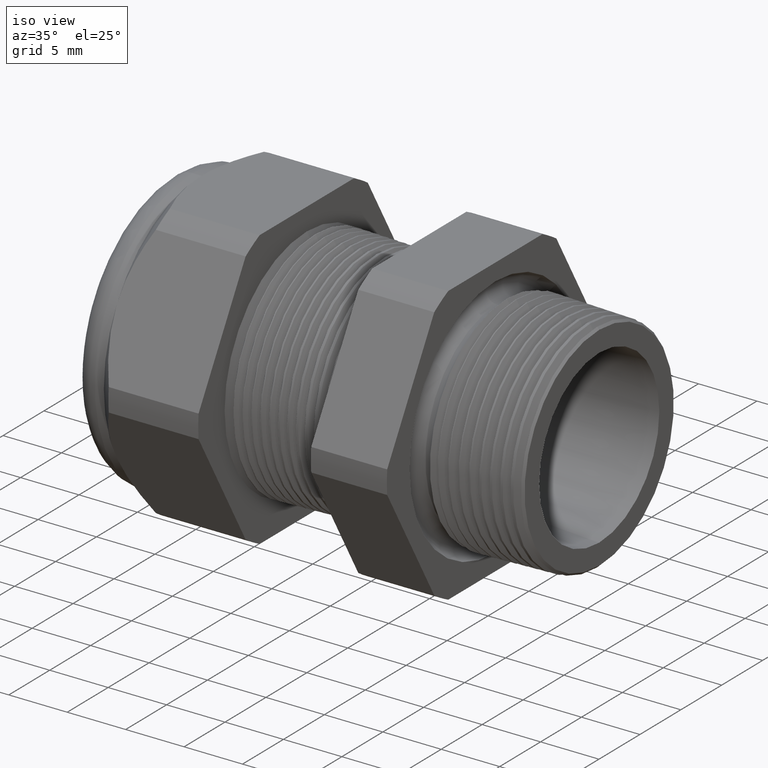
[diagram: clean part render]
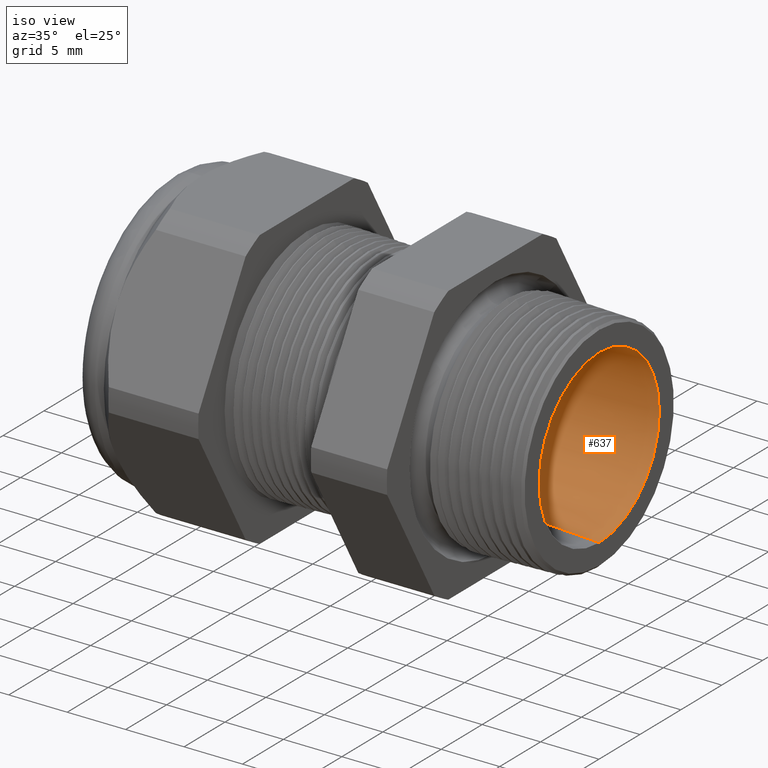
[diagram: same view with one face highlighted and labeled with its STEP entity id]
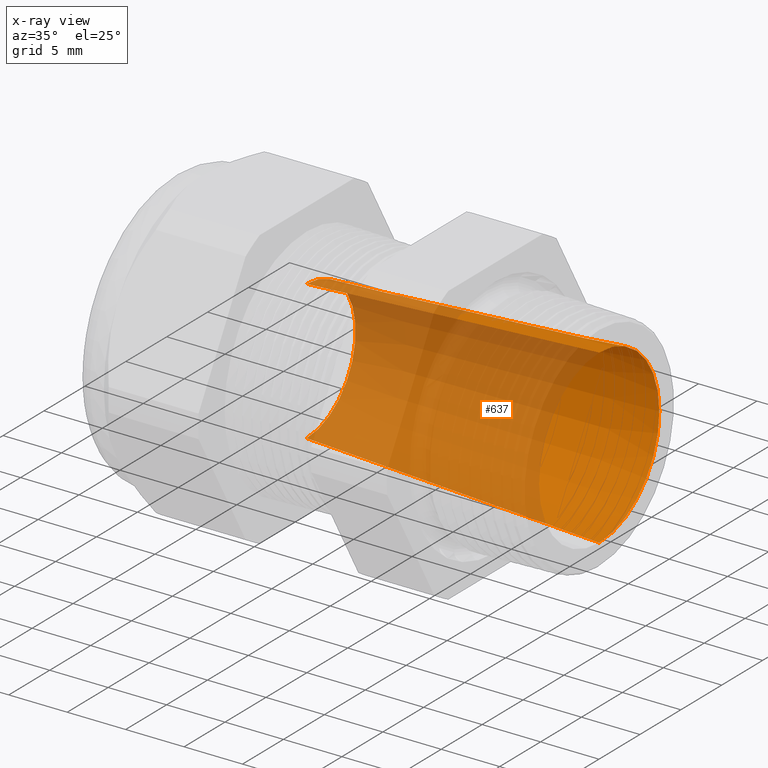
[diagram: x-ray of the same camera — body ghosted, the highlighted face saturated]
A machine part, iso view. The second image highlights one B-rep face of the part: STEP entity #637.
The next image is the same camera in x-ray: the body ghosted, the highlighted face saturated — about 67% of this face is hidden behind the body in this view.
In plain terms, the highlighted conical surface has half-angle 3.148 deg.
Its self-contained STEP definition (entity closure, byte-faithful):
#614 = ORIENTED_EDGE ( 'NONE', *, *, #4610, .F. ) ;
#615 = ORIENTED_EDGE ( 'NONE', *, *, #636, .F. ) ;
#616 = ORIENTED_EDGE ( 'NONE', *, *, #4959, .T. ) ;
#617 = ORIENTED_EDGE ( 'NONE', *, *, #618, .T. ) ;
#618 = EDGE_CURVE ( 'NONE', #4956, #4608, #2332, .T. ) ;
#636 = EDGE_CURVE ( 'NONE', #4617, #4628, #2369, .T. ) ;
#637 = ADVANCED_FACE ( 'NONE', ( #2365 ), #2364, .F. ) ;
#638 = EDGE_LOOP ( 'NONE', ( #614, #615, #616, #617 ) ) ;
#2328 = DIRECTION ( 'NONE',  ( 0.0000000000000000000, 0.0000000000000000000, -1.000000000000000000 ) ) ;
#2329 = DIRECTION ( 'NONE',  ( 1.000000000000000000, 0.0000000000000000000, 0.0000000000000000000 ) ) ;
#2330 = CARTESIAN_POINT ( 'NONE',  ( 0.03999999999999997300, 0.0000000000000000000, 0.0000000000000000000 ) ) ;
#2331 = AXIS2_PLACEMENT_3D ( 'NONE', #2330, #2329, #2328 ) ;
#2332 = CIRCLE ( 'NONE', #2331, 0.2891955268946231900 ) ;
#2359 = DIRECTION ( 'NONE',  ( 0.0000000000000000000, 0.0000000000000000000, -1.000000000000000000 ) ) ;
#2360 = DIRECTION ( 'NONE',  ( 1.000000000000000000, 0.0000000000000000000, 0.0000000000000000000 ) ) ;
#2361 = CARTESIAN_POINT ( 'NONE',  ( -0.9454330708661418100, 0.0000000000000000000, 0.0000000000000000000 ) ) ;
#2362 = AXIS2_PLACEMENT_3D ( 'NONE', #2361, #2360, #2359 ) ;
#2364 = CONICAL_SURFACE ( 'NONE', #2362, 0.2350000000000000100, 0.05494131151472639300 ) ;
#2365 = FACE_OUTER_BOUND ( 'NONE', #638, .T. ) ;
#2366 = DIRECTION ( 'NONE',  ( 0.0000000000000000000, 0.0000000000000000000, -1.000000000000000000 ) ) ;
#2367 = DIRECTION ( 'NONE',  ( 1.000000000000000000, 0.0000000000000000000, 0.0000000000000000000 ) ) ;
#2368 = AXIS2_PLACEMENT_3D ( 'NONE', #2375, #2367, #2366 ) ;
#2369 = CIRCLE ( 'NONE', #2368, 0.2350000000000000100 ) ;
#2375 = CARTESIAN_POINT ( 'NONE',  ( -0.9454330708661418100, 0.0000000000000000000, 0.0000000000000000000 ) ) ;
#3501 = CARTESIAN_POINT ( 'NONE',  ( -0.9454330708661418100, 0.0000000000000000000, -0.2350000000000000100 ) ) ;
#3518 = DIRECTION ( 'NONE',  ( 0.9984911057575849300, 6.724985655221754600E-018, 0.05491367519111593100 ) ) ;
#3519 = VECTOR ( 'NONE', #3518, 39.37007874015748100 ) ;
#3520 = CARTESIAN_POINT ( 'NONE',  ( -0.9454330708661418100, 2.877919977996280400E-017, 0.2350000000000000100 ) ) ;
#3521 = LINE ( 'NONE', #3520, #3519 ) ;
#3522 = CARTESIAN_POINT ( 'NONE',  ( 0.03999999999999997300, 3.541623763392326200E-017, 0.2891955268946231900 ) ) ;
#3556 = CARTESIAN_POINT ( 'NONE',  ( -0.9454330708661418100, 2.877919977996280400E-017, 0.2350000000000000100 ) ) ;
#4180 = DIRECTION ( 'NONE',  ( 0.9984911057575849300, 0.0000000000000000000, -0.05491367519111593100 ) ) ;
#4181 = VECTOR ( 'NONE', #4180, 39.37007874015748100 ) ;
#4182 = CARTESIAN_POINT ( 'NONE',  ( -0.9454330708661418100, 0.0000000000000000000, -0.2350000000000000100 ) ) ;
#4183 = LINE ( 'NONE', #4182, #4181 ) ;
#4184 = CARTESIAN_POINT ( 'NONE',  ( 0.03999999999999997300, 0.0000000000000000000, -0.2891955268946231900 ) ) ;
#4608 = VERTEX_POINT ( 'NONE', #3522 ) ;
#4610 = EDGE_CURVE ( 'NONE', #4628, #4608, #3521, .T. ) ;
#4617 = VERTEX_POINT ( 'NONE', #3501 ) ;
#4628 = VERTEX_POINT ( 'NONE', #3556 ) ;
#4956 = VERTEX_POINT ( 'NONE', #4184 ) ;
#4959 = EDGE_CURVE ( 'NONE', #4617, #4956, #4183, .T. ) ;